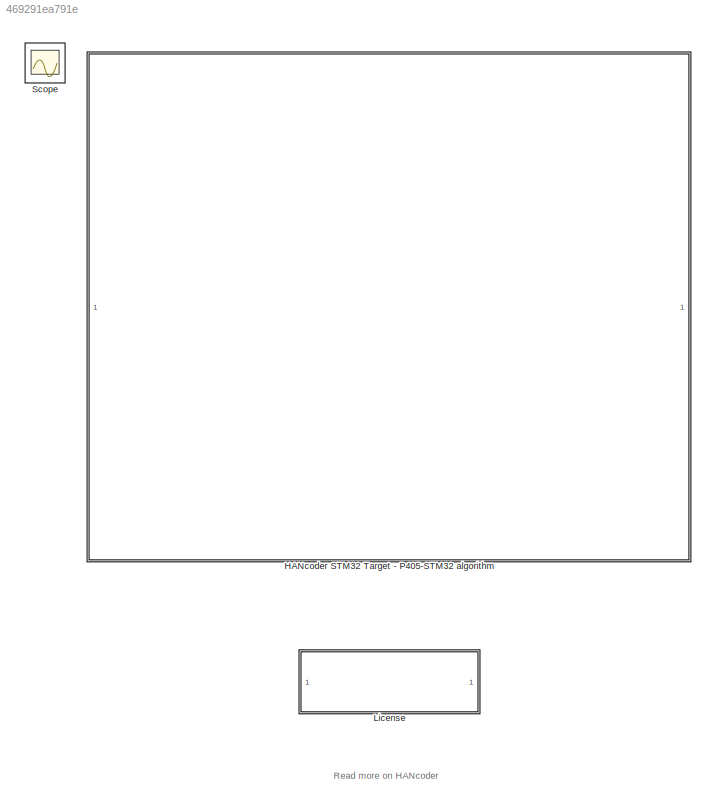
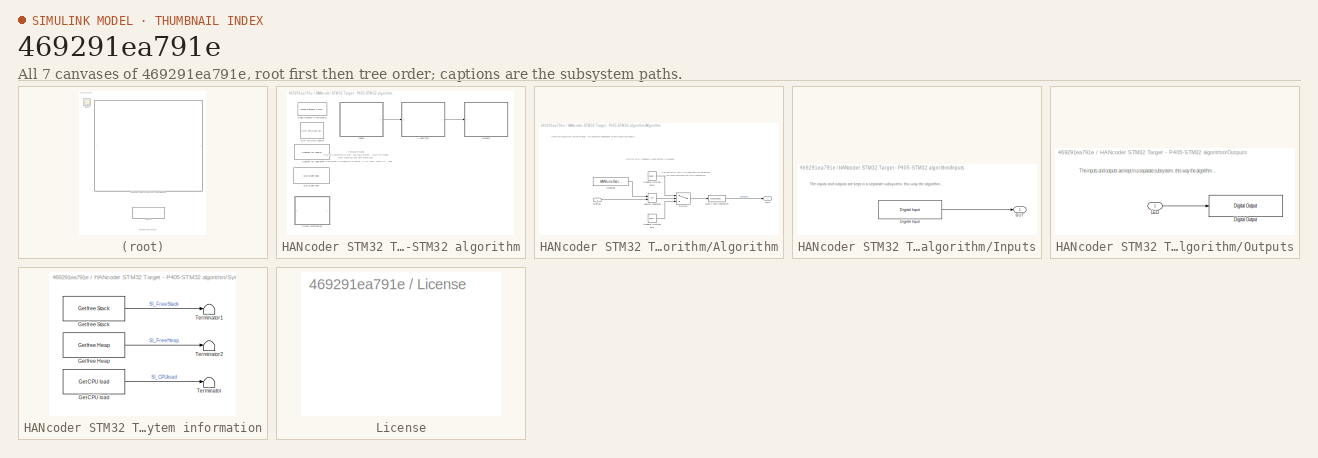
[diagram: thumbnail index - all 7 canvases of the model, root first then tree order]
MODEL slx_469291ea791e
KIND model
CONFIG PreLoadFcn = librarySetup\neval([bdroot,'_startup']) %Calling [modelName]_startup.m
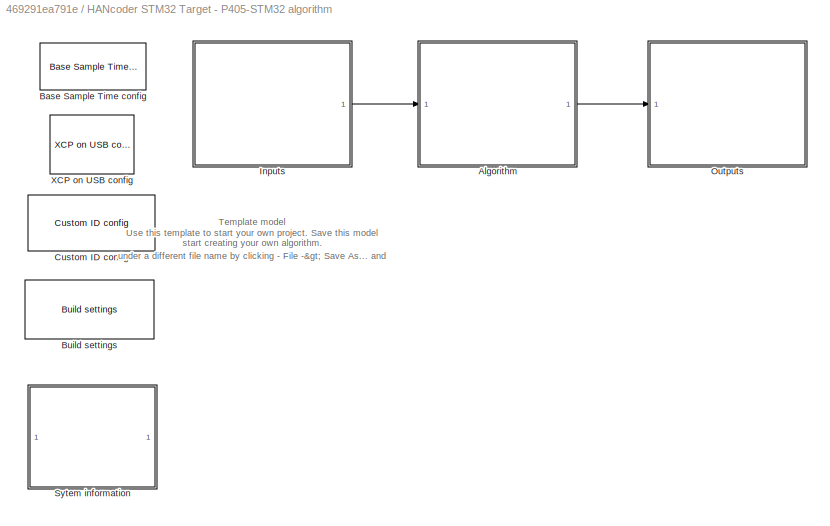
BLOCK [SubSystem] HANcoder STM32 Target - P405-STM32 algorithm
  CopyFcn = HANcoderChecks('Copy');
  MoveFcn = HANcoderChecks('MoveP405');
  NameChangeFcn = HANcoderChecks('NameChangeP405');
  Ports = []
  RequestExecContextInheritance = off
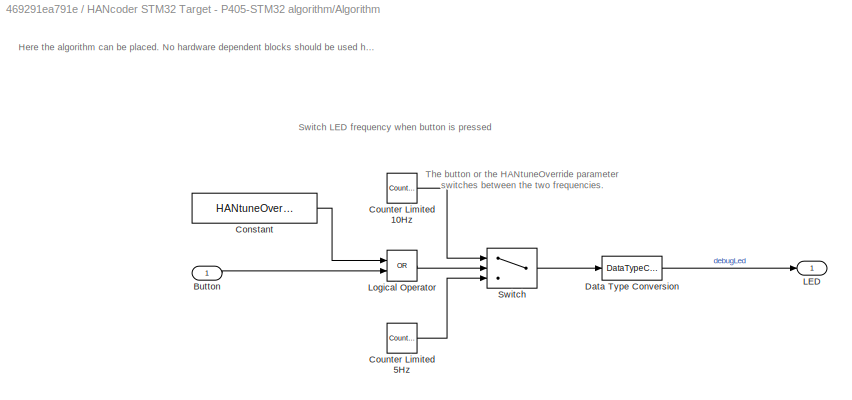
BLOCK [SubSystem] HANcoder STM32 Target - P405-STM32 algorithm/Algorithm
  Ports = [1, 1]
  RequestExecContextInheritance = off
BLOCK [Inport] HANcoder STM32 Target - P405-STM32 algorithm/Algorithm/Button
  IconDisplay = Port number
BLOCK [Constant] HANcoder STM32 Target - P405-STM32 algorithm/Algorithm/Constant
  OutDataTypeStr = boolean
  Value = HANtuneOverride
BLOCK [Reference] HANcoder STM32 Target - P405-STM32 algorithm/Algorithm/Counter Limited 10Hz  REF=simulink/Sources/Counter
Limited
  Ports = [0, 1]
  SourceBlock = simulink/Sources/Counter\nLimited
  SourceType = Counter Limited
  tsamp = 0.1
  uplimit = 1
BLOCK [Reference] HANcoder STM32 Target - P405-STM32 algorithm/Algorithm/Counter Limited 5Hz  REF=simulink/Sources/Counter
Limited
  Ports = [0, 1]
  SourceBlock = simulink/Sources/Counter\nLimited
  SourceType = Counter Limited
  tsamp = 0.2
  uplimit = 1
BLOCK [DataTypeConversion] HANcoder STM32 Target - P405-STM32 algorithm/Algorithm/Data Type Conversion
  OutDataTypeStr = boolean
  RndMeth = Floor
  SaturateOnIntegerOverflow = off
BLOCK [Outport] HANcoder STM32 Target - P405-STM32 algorithm/Algorithm/LED
  IconDisplay = Port number
BLOCK [Logic] HANcoder STM32 Target - P405-STM32 algorithm/Algorithm/Logical Operator
  AllPortsSameDT = off
  Operator = OR
  OutDataTypeStr = boolean
  Ports = [2, 1]
BLOCK [Switch] HANcoder STM32 Target - P405-STM32 algorithm/Algorithm/Switch
  Criteria = u2 > Threshold
  InputSameDT = off
  SaturateOnIntegerOverflow = off
BLOCK [Reference] HANcoder STM32 Target - P405-STM32 algorithm/Base Sample Time config  REF=HANcoder_STM32_Target/STM32-P405/System Config/Base Sample Time config
  Description = HANcoder Target STM32-P405 blockset version 1.1
  Ports = []
  SourceBlock = HANcoder_STM32_Target/STM32-P405/System Config/Base Sample Time config
  SourceType = Base Sample Time config
  Tag = HANcoder_TARGET_STM32_P405
  UserDataPersistent = on
  baseSampleTime = 10
  extraStack = 100
BLOCK [Reference] HANcoder STM32 Target - P405-STM32 algorithm/Build settings  REF=HANcoder_STM32_Target/STM32-P405/System Config/Build settings
  AutoASAP2add = on
  AutoFlash = USB
  Ports = []
  SourceBlock = HANcoder_STM32_Target/STM32-P405/System Config/Build settings
  SourceType = Build Settings
  Tag = HANcoder_TARGET_STM32_P405
  UserDataPersistent = on
BLOCK [Reference] HANcoder STM32 Target - P405-STM32 algorithm/Custom ID config  REF=HANcoder_STM32_Target/STM32-P405/System Config/Custom ID config
  Ports = []
  SourceBlock = HANcoder_STM32_Target/STM32-P405/System Config/Custom ID config
  SourceType = Custom ID config
  Tag = HANcoder_TARGET_STM32_P405
  UserDataPersistent = on
  softID = softwareID
  softNUM = 1
BLOCK [SubSystem] HANcoder STM32 Target - P405-STM32 algorithm/Inputs
  Ports = [0, 1]
  RequestExecContextInheritance = off
BLOCK [Outport] HANcoder STM32 Target - P405-STM32 algorithm/Inputs/BUT
  IconDisplay = Port number
BLOCK [Reference] HANcoder STM32 Target - P405-STM32 algorithm/Inputs/Digital Input  REF=HANcoder_STM32_Target/STM32-P405/Digital Inputs/Digital Input
  Ports = [0, 1]
  SourceBlock = HANcoder_STM32_Target/STM32-P405/Digital Inputs/Digital Input
  SourceType = Digital Input
  Tag = HANcoder_TARGET_STM32_P405
  UserDataPersistent = on
  config = Pulldown
  pinID = Port A pin 0 - BUTTON (5V Tolerant)
  tsamp = -1
BLOCK [SubSystem] HANcoder STM32 Target - P405-STM32 algorithm/Outputs
  Ports = [1]
  RequestExecContextInheritance = off
BLOCK [Reference] HANcoder STM32 Target - P405-STM32 algorithm/Outputs/Digital Output  REF=HANcoder_STM32_Target/STM32-P405/Digital Outputs/Digital Output
  Ports = [1]
  SourceBlock = HANcoder_STM32_Target/STM32-P405/Digital Outputs/Digital Output
  SourceType = Digital Output
  Tag = HANcoder_TARGET_STM32_P405
  UserDataPersistent = on
  config = Push pull
  pinID = Port C pin 12 (LED)
  tsamp = -1
BLOCK [Inport] HANcoder STM32 Target - P405-STM32 algorithm/Outputs/LED
  IconDisplay = Port number
BLOCK [SubSystem] HANcoder STM32 Target - P405-STM32 algorithm/Sytem information
  Ports = []
  RequestExecContextInheritance = off
BLOCK [Reference] HANcoder STM32 Target - P405-STM32 algorithm/Sytem information/Get CPU load  REF=HANcoder_STM32_Target/STM32-P405/System Management/Get CPU load
  Ports = [0, 1]
  SourceBlock = HANcoder_STM32_Target/STM32-P405/System Management/Get CPU load
  SourceType = Get CPU load
  Tag = HANcoder_TARGET_STM32_P405
  UserDataPersistent = on
  mode = Current CPU load
  tsamp = -1
BLOCK [Reference] HANcoder STM32 Target - P405-STM32 algorithm/Sytem information/Get free Heap  REF=HANcoder_STM32_Target/STM32-P405/System Management/Get free Heap
  Ports = [0, 1]
  SourceBlock = HANcoder_STM32_Target/STM32-P405/System Management/Get free Heap
  SourceType = Get free Heap
  Tag = HANcoder_TARGET_STM32_P405
  UserDataPersistent = on
  tsamp = -1
BLOCK [Reference] HANcoder STM32 Target - P405-STM32 algorithm/Sytem information/Get free Stack  REF=HANcoder_STM32_Target/STM32-P405/System Management/Get free Stack
  Ports = [0, 1]
  SourceBlock = HANcoder_STM32_Target/STM32-P405/System Management/Get free Stack
  SourceType = Get free Stacl
  Tag = HANcoder_TARGET_STM32_P405
  UserDataPersistent = on
  taskIdx = Application Control Task
  tsamp = -1
BLOCK [Terminator] HANcoder STM32 Target - P405-STM32 algorithm/Sytem information/Terminator
BLOCK [Terminator] HANcoder STM32 Target - P405-STM32 algorithm/Sytem information/Terminator1
BLOCK [Terminator] HANcoder STM32 Target - P405-STM32 algorithm/Sytem information/Terminator2
BLOCK [Reference] HANcoder STM32 Target - P405-STM32 algorithm/XCP on USB config  REF=HANcoder_STM32_Target/STM32-P405/System Config/XCP on USB config
  Ports = []
  SourceBlock = HANcoder_STM32_Target/STM32-P405/System Config/XCP on USB config
  SourceType = XCP on USB config
  Tag = HANcoder_TARGET_STM32_P405
  UserDataPersistent = on
BLOCK [SubSystem] License
  MoveFcn = HANcoderChecks('MoveLicenseBlock');
  NameChangeFcn = HANcoderChecks('NameChangeLicenseBlock');
  OpenFcn = winopen('License.pdf')
  Ports = []
  RequestExecContextInheritance = off
  ShowPortLabels = none
BLOCK [Scope] Scope
  Floating = off
  IOType = viewer
  MaxDataPoints = 7500
  NumInputPorts = 1
  Ports = []
  ShowLegends = off
  TimeRange = 10
  YMax = 1
  YMin = -1
  ZoomMode = yonly
ANNOTATION (root): Read more on HANcoder
ANNOTATION HANcoder STM32 Target - P405-STM32 algorithm: Template model Use this template to start your own project. Save this model under a different file name by clicking - File -> Save As... and start creating your own algorithm.
ANNOTATION HANcoder STM32 Target - P405-STM32 algorithm/Algorithm: Here the algorithm can be placed. No hardware dependent blocks should be used here.
ANNOTATION HANcoder STM32 Target - P405-STM32 algorithm/Algorithm: Switch LED frequency when button is pressed
ANNOTATION HANcoder STM32 Target - P405-STM32 algorithm/Algorithm: The button or the HANtuneOverride parameter switches between the two frequencies.
ANNOTATION HANcoder STM32 Target - P405-STM32 algorithm/Inputs: The inputs and outputs are kept in a separate subsystem, this way the algorithm can easily be transferred to different hardware
ANNOTATION HANcoder STM32 Target - P405-STM32 algorithm/Outputs: The inputs and outputs are kept in a separate subsystem, this way the algorithm can easily be transferred to different hardware
LINE HANcoder STM32 Target - P405-STM32 algorithm/Algorithm/Button:1 -> HANcoder STM32 Target - P405-STM32 algorithm/Algorithm/Logical Operator:2
LINE HANcoder STM32 Target - P405-STM32 algorithm/Algorithm/Constant:1 -> HANcoder STM32 Target - P405-STM32 algorithm/Algorithm/Logical Operator:1
LINE HANcoder STM32 Target - P405-STM32 algorithm/Algorithm/Counter Limited 10Hz:1 -> HANcoder STM32 Target - P405-STM32 algorithm/Algorithm/Switch:1
LINE HANcoder STM32 Target - P405-STM32 algorithm/Algorithm/Counter Limited 5Hz:1 -> HANcoder STM32 Target - P405-STM32 algorithm/Algorithm/Switch:3
LINE HANcoder STM32 Target - P405-STM32 algorithm/Algorithm/Data Type Conversion:1 -> HANcoder STM32 Target - P405-STM32 algorithm/Algorithm/LED:1
LINE HANcoder STM32 Target - P405-STM32 algorithm/Algorithm/Logical Operator:1 -> HANcoder STM32 Target - P405-STM32 algorithm/Algorithm/Switch:2
LINE HANcoder STM32 Target - P405-STM32 algorithm/Algorithm/Switch:1 -> HANcoder STM32 Target - P405-STM32 algorithm/Algorithm/Data Type Conversion:1
LINE HANcoder STM32 Target - P405-STM32 algorithm/Algorithm:1 -> HANcoder STM32 Target - P405-STM32 algorithm/Outputs:1
LINE HANcoder STM32 Target - P405-STM32 algorithm/Inputs/Digital Input:1 -> HANcoder STM32 Target - P405-STM32 algorithm/Inputs/BUT:1
LINE HANcoder STM32 Target - P405-STM32 algorithm/Inputs:1 -> HANcoder STM32 Target - P405-STM32 algorithm/Algorithm:1
LINE HANcoder STM32 Target - P405-STM32 algorithm/Outputs/LED:1 -> HANcoder STM32 Target - P405-STM32 algorithm/Outputs/Digital Output:1
LINE HANcoder STM32 Target - P405-STM32 algorithm/Sytem information/Get CPU load:1 -> HANcoder STM32 Target - P405-STM32 algorithm/Sytem information/Terminator:1
LINE HANcoder STM32 Target - P405-STM32 algorithm/Sytem information/Get free Heap:1 -> HANcoder STM32 Target - P405-STM32 algorithm/Sytem information/Terminator2:1
LINE HANcoder STM32 Target - P405-STM32 algorithm/Sytem information/Get free Stack:1 -> HANcoder STM32 Target - P405-STM32 algorithm/Sytem information/Terminator1:1
